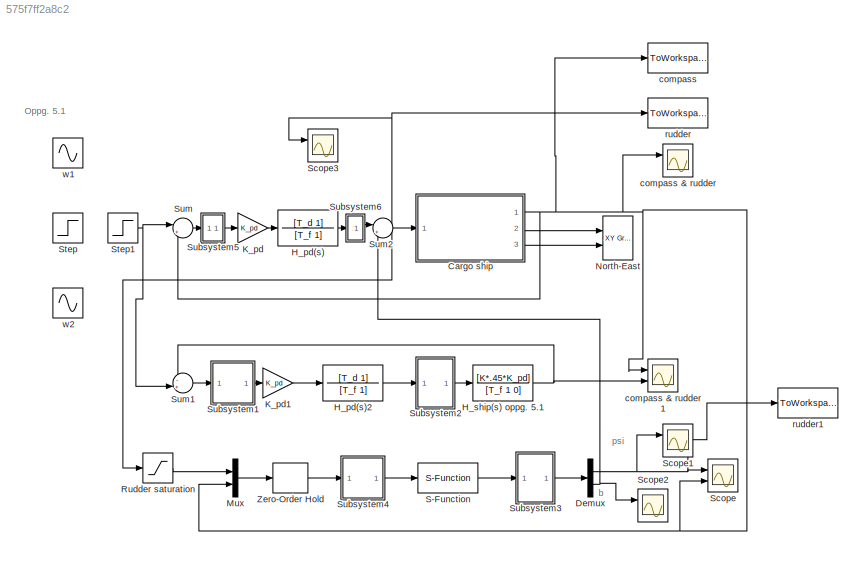
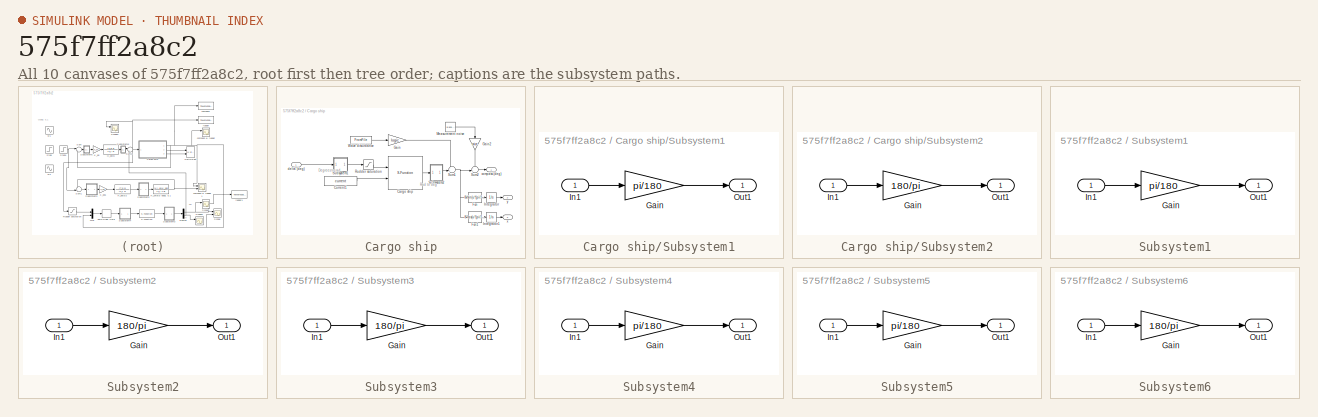
[diagram: thumbnail index - all 10 canvases of the model, root first then tree order]
MODEL slx_575f7ff2a8c2
KIND model
CONFIG AbsTol = auto
CONFIG EnableMultiTasking = on
CONFIG FixedStep = auto
CONFIG MaxStep = auto
CONFIG MinStep = auto
CONFIG RelTol = 1e-3
CONFIG SampleTimeConstraint = Unconstrained
CONFIG Solver = ode45
CONFIG SolverName = ode45
CONFIG StartTime = 0.0
CONFIG StopTime = 800
BLOCK [TransferFcn]  H_pd(s)
  Denominator = [T_f 1]
  Numerator = [T_d 1]
BLOCK [TransferFcn]  H_pd(s)2
  Denominator = [T_f 1]
  Numerator = [T_d 1]
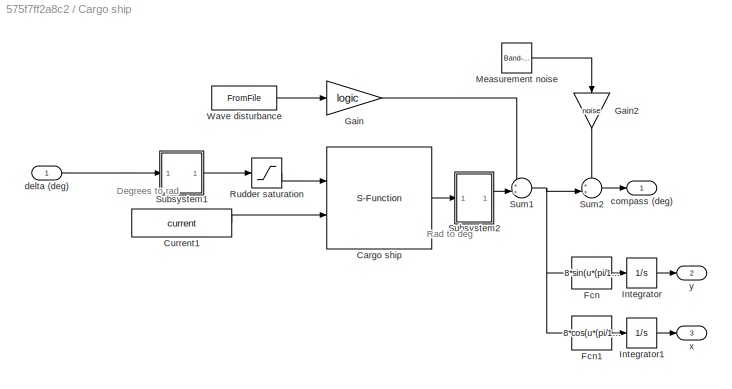
BLOCK [SubSystem] Cargo ship
  Ports = [1, 3]
  RequestExecContextInheritance = off
  Variant = off
BLOCK [S-Function] Cargo ship/Cargo ship
  EnableBusSupport = off
  FunctionName = Cargoship
  Ports = [2, 1]
  SFcnIsStateOwnerBlock = off
  SFunctionDeploymentMode = off
BLOCK [Constant] Cargo ship/Current1
  Value = current
BLOCK [Fcn] Cargo ship/Fcn
  Expr = 8*sin(u*(pi/180))
BLOCK [Fcn] Cargo ship/Fcn1
  Expr = 8*cos(u*(pi/180))
BLOCK [Gain] Cargo ship/Gain
  Gain = logic
BLOCK [Gain] Cargo ship/Gain2
  Gain = noise
BLOCK [Integrator] Cargo ship/Integrator
  Ports = [1, 1]
BLOCK [Integrator] Cargo ship/Integrator1
  Ports = [1, 1]
BLOCK [Reference] Cargo ship/Measurement noise  REF=simulink/Sources/Band-Limited
White Noise
  Ports = [0, 1]
  SourceBlock = simulink/Sources/Band-Limited\nWhite Noise
  SourceType = Band-Limited White Noise.
BLOCK [Saturate] Cargo ship/Rudder saturation
  InputPortMap = u0
  LowerLimit = -45*(pi/180)
  Ports = [1, 1]
  UpperLimit = 45*(pi/180)
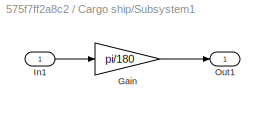
BLOCK [SubSystem] Cargo ship/Subsystem1
  Ports = [1, 1]
  RequestExecContextInheritance = off
  Variant = off
BLOCK [Gain] Cargo ship/Subsystem1/Gain
  Gain = pi/180
BLOCK [Inport] Cargo ship/Subsystem1/In1
  IconDisplay = Port number
BLOCK [Outport] Cargo ship/Subsystem1/Out1
  IconDisplay = Port number
BLOCK [SubSystem] Cargo ship/Subsystem2
  Ports = [1, 1]
  RequestExecContextInheritance = off
  Variant = off
BLOCK [Gain] Cargo ship/Subsystem2/Gain
  Gain = 180/pi
BLOCK [Inport] Cargo ship/Subsystem2/In1
  IconDisplay = Port number
BLOCK [Outport] Cargo ship/Subsystem2/Out1
  IconDisplay = Port number
BLOCK [Sum] Cargo ship/Sum1
  IconShape = round
  InputSameDT = off
  Inputs = ++|
  OutDataTypeStr = Inherit: Inherit via internal rule
  Ports = [2, 1]
BLOCK [Sum] Cargo ship/Sum2
  IconShape = round
  InputSameDT = off
  Inputs = ++|
  OutDataTypeStr = Inherit: Inherit via internal rule
  Ports = [2, 1]
BLOCK [FromFile] Cargo ship/Wave disturbance
  FileName = wave.mat
  SampleTime = 0
BLOCK [Outport] Cargo ship/compass (deg)
  IconDisplay = Port number
BLOCK [Inport] Cargo ship/delta (deg)
  IconDisplay = Port number
BLOCK [Outport] Cargo ship/x
  IconDisplay = Port number
  Port = 3
BLOCK [Outport] Cargo ship/y
  IconDisplay = Port number
  Port = 2
BLOCK [Demux] Demux
  DisplayOption = bar
  Outputs = 2
  Ports = [1, 2]
BLOCK [TransferFcn] H_ship(s) oppg. 5.1
  Denominator = [T_f 1 0]
  Numerator = [K*.45*K_pd]
BLOCK [Gain] K_pd
  Gain = K_pd
  OutDataTypeStr = Inherit: Inherit via internal rule
  ParamDataTypeStr = Inherit: Inherit via internal rule
  SaturateOnIntegerOverflow = off
BLOCK [Gain] K_pd1
  Gain = K_pd
  OutDataTypeStr = Inherit: Inherit via internal rule
  ParamDataTypeStr = Inherit: Inherit via internal rule
  SaturateOnIntegerOverflow = off
BLOCK [Mux] Mux
  DisplayOption = bar
  Inputs = 2
  Ports = [2, 1]
BLOCK [Reference] North-East  REF=simulink/Sinks/XY Graph
  Ports = [2]
  SourceBlock = simulink/Sinks/XY Graph
  SourceType = XY scope.
BLOCK [Saturate] Rudder saturation
  InputPortMap = u0
  LowerLimit = -45*(pi/180)
  Ports = [1, 1]
  UpperLimit = 45*(pi/180)
BLOCK [S-Function] S-Function
  EnableBusSupport = off
  FunctionName = Sfunctionshell
  Parameters = Data
  Ports = [1, 1]
  SFcnIsStateOwnerBlock = off
  SFunctionDeploymentMode = off
BLOCK [Scope] Scope
  NumInputPorts = 2
  Ports = [2]
  ScopeSpecificationString = Simulink.scopes.TimeScopeBlockCfg('CurrentConfiguration', extmgr.ConfigurationSet(extmgr.Configuration('Core','General UI',true),extmgr.Configuration('Core','Source UI',true),extmgr.Configuration('Sources','WiredSimulink',true,'DataLoggingVariableName','ScopeData1'),extmgr.Configuration('Visuals','Time Domain',true,'SerializedDisplays',{struct('MinYLimReal','-9.78651','MaxYLimReal','33.4526','YLab...<+1451ch>
BLOCK [Scope] Scope1
  NumInputPorts = 2
  Ports = [2]
  ScopeSpecificationString = Simulink.scopes.TimeScopeBlockCfg('CurrentConfiguration', extmgr.ConfigurationSet(extmgr.Configuration('Core','General UI',true),extmgr.Configuration('Core','Source UI',true),extmgr.Configuration('Sources','WiredSimulink',true,'DataLoggingVariableName','ScopeData2'),extmgr.Configuration('Visuals','Time Domain',true,'SerializedDisplays',{struct('MinYLimReal','-9.78251','MaxYLimReal','33.45215','YLa...<+1452ch>
BLOCK [Scope] Scope2
  NumInputPorts = 2
  Ports = [2]
  ScopeSpecificationString = Simulink.scopes.TimeScopeBlockCfg('CurrentConfiguration', extmgr.ConfigurationSet(extmgr.Configuration('Core','General UI',true),extmgr.Configuration('Core','Source UI',true),extmgr.Configuration('Sources','WiredSimulink',true,'DataLoggingVariableName','ScopeData3'),extmgr.Configuration('Visuals','Time Domain',true,'SerializedDisplays',{struct('MinYLimReal','-0.000009','MaxYLimReal','0.00001','YLa...<+1452ch>
BLOCK [Scope] Scope3
  NumInputPorts = 2
  Ports = [2]
  ScopeSpecificationString = Simulink.scopes.TimeScopeBlockCfg('CurrentConfiguration', extmgr.ConfigurationSet(extmgr.Configuration('Core','General UI',true),extmgr.Configuration('Core','Source UI',true),extmgr.Configuration('Sources','WiredSimulink',true,'DataLoggingVariableName','ScopeData4'),extmgr.Configuration('Visuals','Time Domain',true,'SerializedDisplays',{struct('MinYLimReal','20.22703','MaxYLimReal','26.39992','YLa...<+1457ch>
BLOCK [Step] Step
  SampleTime = 0
BLOCK [Step] Step1
  After = phi
  SampleTime = 0
  Time = 0
BLOCK [SubSystem] Subsystem1
  Ports = [1, 1]
  RequestExecContextInheritance = off
  Variant = off
BLOCK [Gain] Subsystem1/Gain
  Gain = pi/180
BLOCK [Inport] Subsystem1/In1
  IconDisplay = Port number
BLOCK [Outport] Subsystem1/Out1
  IconDisplay = Port number
BLOCK [SubSystem] Subsystem2
  Ports = [1, 1]
  RequestExecContextInheritance = off
  Variant = off
BLOCK [Gain] Subsystem2/Gain
  Gain = 180/pi
BLOCK [Inport] Subsystem2/In1
  IconDisplay = Port number
BLOCK [Outport] Subsystem2/Out1
  IconDisplay = Port number
BLOCK [SubSystem] Subsystem3
  Ports = [1, 1]
  RequestExecContextInheritance = off
  Variant = off
BLOCK [Gain] Subsystem3/Gain
  Gain = 180/pi
BLOCK [Inport] Subsystem3/In1
  IconDisplay = Port number
BLOCK [Outport] Subsystem3/Out1
  IconDisplay = Port number
BLOCK [SubSystem] Subsystem4
  Ports = [1, 1]
  RequestExecContextInheritance = off
  Variant = off
BLOCK [Gain] Subsystem4/Gain
  Gain = pi/180
BLOCK [Inport] Subsystem4/In1
  IconDisplay = Port number
BLOCK [Outport] Subsystem4/Out1
  IconDisplay = Port number
BLOCK [SubSystem] Subsystem5
  Ports = [1, 1]
  RequestExecContextInheritance = off
  Variant = off
BLOCK [Gain] Subsystem5/Gain
  Gain = pi/180
BLOCK [Inport] Subsystem5/In1
  IconDisplay = Port number
BLOCK [Outport] Subsystem5/Out1
  IconDisplay = Port number
BLOCK [SubSystem] Subsystem6
  Ports = [1, 1]
  RequestExecContextInheritance = off
  Variant = off
BLOCK [Gain] Subsystem6/Gain
  Gain = 180/pi
BLOCK [Inport] Subsystem6/In1
  IconDisplay = Port number
BLOCK [Outport] Subsystem6/Out1
  IconDisplay = Port number
BLOCK [Sum] Sum
  IconShape = round
  InputSameDT = off
  Inputs = |+-
  OutDataTypeStr = Inherit: Inherit via internal rule
  Ports = [2, 1]
  SaturateOnIntegerOverflow = off
BLOCK [Sum] Sum1
  IconShape = round
  InputSameDT = off
  Inputs = -+|
  OutDataTypeStr = Inherit: Inherit via internal rule
  Ports = [2, 1]
  SaturateOnIntegerOverflow = off
BLOCK [Sum] Sum2
  IconShape = round
  InputSameDT = off
  Inputs = |++
  OutDataTypeStr = Inherit: Inherit via internal rule
  Ports = [2, 1]
  SaturateOnIntegerOverflow = off
BLOCK [ZeroOrderHold] Zero-Order Hold
  SampleTime = -1
BLOCK [ToWorkspace] compass
  FixptAsFi = on
  MaxDataPoints = inf
  Ports = [1]
  SampleTime = -1
  Save2DSignal = 3-D array (concatenate along third dimension)
  SaveFormat = Timeseries
  VariableName = compass
BLOCK [Scope] compass & rudder 
  NumInputPorts = 2
  Ports = [2]
  ScopeSpecificationString = Simulink.scopes.TimeScopeBlockCfg('CurrentConfiguration', extmgr.ConfigurationSet(extmgr.Configuration('Core','General UI',true),extmgr.Configuration('Core','Source UI',true),extmgr.Configuration('Sources','WiredSimulink',true,'DataLoggingSaveFormat','StructureWithTime','DataLoggingLimitDataPoints',true,'DataLoggingDecimation','1','DataLoggingDecimateData',true),extmgr.Configuration('Visuals','Tim...<+1704ch>
BLOCK [Scope] compass & rudder 1
  NumInputPorts = 2
  Ports = [2]
  ScopeSpecificationString = Simulink.scopes.TimeScopeBlockCfg('CurrentConfiguration', extmgr.ConfigurationSet(extmgr.Configuration('Core','General UI',true),extmgr.Configuration('Core','Source UI',true),extmgr.Configuration('Sources','WiredSimulink',true,'DataLoggingVariableName','ScopeData1'),extmgr.Configuration('Visuals','Time Domain',true,'SerializedDisplays',{struct('MinYLimReal','-3.74986','MaxYLimReal','33.74874','YLa...<+1423ch>
BLOCK [ToWorkspace] rudder
  FixptAsFi = on
  MaxDataPoints = inf
  Ports = [1]
  SampleTime = -1
  Save2DSignal = 3-D array (concatenate along third dimension)
  SaveFormat = Timeseries
  VariableName = rudder
BLOCK [ToWorkspace] rudder1
  FixptAsFi = on
  MaxDataPoints = inf
  Ports = [1]
  SampleTime = -1
  Save2DSignal = 3-D array (concatenate along third dimension)
  SaveFormat = Timeseries
  VariableName = kalman_estimate_sfunc4
BLOCK [Sin] w1 
  Frequency = 0.005
  Ports = [0, 1]
  SampleTime = 0
BLOCK [Sin] w2
  Frequency = 0.05
  Ports = [0, 1]
  SampleTime = 0
ANNOTATION (root): Oppg. 5.1
ANNOTATION (root): b
ANNOTATION (root): psi
ANNOTATION Cargo ship: Degrees to rad
ANNOTATION Cargo ship: Rad to deg
LINE  H_pd(s)2:1 -> Subsystem2:1
LINE  H_pd(s):1 -> Subsystem6:1
LINE Cargo ship/Cargo ship:1 -> Cargo ship/Subsystem2:1
LINE Cargo ship/Current1:1 -> Cargo ship/Cargo ship:2
LINE Cargo ship/Fcn1:1 -> Cargo ship/Integrator1:1
LINE Cargo ship/Fcn:1 -> Cargo ship/Integrator:1
LINE Cargo ship/Gain2:1 -> Cargo ship/Sum2:1
LINE Cargo ship/Gain:1 -> Cargo ship/Sum1:1
LINE Cargo ship/Integrator1:1 -> Cargo ship/x:1
LINE Cargo ship/Integrator:1 -> Cargo ship/y:1
LINE Cargo ship/Measurement noise:1 -> Cargo ship/Gain2:1
LINE Cargo ship/Rudder saturation:1 -> Cargo ship/Cargo ship:1
LINE Cargo ship/Subsystem1/Gain:1 -> Cargo ship/Subsystem1/Out1:1
LINE Cargo ship/Subsystem1/In1:1 -> Cargo ship/Subsystem1/Gain:1
LINE Cargo ship/Subsystem1:1 -> Cargo ship/Rudder saturation:1
LINE Cargo ship/Subsystem2/Gain:1 -> Cargo ship/Subsystem2/Out1:1
LINE Cargo ship/Subsystem2/In1:1 -> Cargo ship/Subsystem2/Gain:1
LINE Cargo ship/Subsystem2:1 -> Cargo ship/Sum1:2
NET Cargo ship/Sum1:1 -> Cargo ship/Fcn1:1, Cargo ship/Fcn:1, Cargo ship/Sum2:2
LINE Cargo ship/Sum2:1 -> Cargo ship/compass (deg):1
LINE Cargo ship/Wave disturbance:1 -> Cargo ship/Gain:1
LINE Cargo ship/delta (deg):1 -> Cargo ship/Subsystem1:1
NET Cargo ship:1 -> Mux:2, Scope:2, Sum:2, compass & rudder 1:1, compass & rudder :1, compass:1
LINE Cargo ship:2 -> North-East:1
LINE Cargo ship:3 -> North-East:2
NET Demux:1 -> Scope1:1, Scope:1, rudder1:1
NET Demux:2 -> Scope2:1, Sum2:2
NET H_ship(s) oppg. 5.1:1 -> Sum1:1, compass & rudder 1:2
LINE K_pd1:1 ->  H_pd(s)2:1
LINE K_pd:1 ->  H_pd(s):1
LINE Mux:1 -> Zero-Order Hold:1
LINE Rudder saturation:1 -> Mux:1
LINE S-Function:1 -> Subsystem3:1
NET Step1:1 -> Sum1:2, Sum:1
LINE Subsystem1/Gain:1 -> Subsystem1/Out1:1
LINE Subsystem1/In1:1 -> Subsystem1/Gain:1
LINE Subsystem1:1 -> K_pd1:1
LINE Subsystem2/Gain:1 -> Subsystem2/Out1:1
LINE Subsystem2/In1:1 -> Subsystem2/Gain:1
LINE Subsystem2:1 -> H_ship(s) oppg. 5.1:1
LINE Subsystem3/Gain:1 -> Subsystem3/Out1:1
LINE Subsystem3/In1:1 -> Subsystem3/Gain:1
LINE Subsystem3:1 -> Demux:1
LINE Subsystem4/Gain:1 -> Subsystem4/Out1:1
LINE Subsystem4/In1:1 -> Subsystem4/Gain:1
LINE Subsystem4:1 -> S-Function:1
LINE Subsystem5/Gain:1 -> Subsystem5/Out1:1
LINE Subsystem5/In1:1 -> Subsystem5/Gain:1
LINE Subsystem5:1 -> K_pd:1
LINE Subsystem6/Gain:1 -> Subsystem6/Out1:1
LINE Subsystem6/In1:1 -> Subsystem6/Gain:1
LINE Subsystem6:1 -> Sum2:1
LINE Sum1:1 -> Subsystem1:1
NET Sum2:1 -> Cargo ship:1, Rudder saturation:1, Scope3:1, rudder:1
LINE Sum:1 -> Subsystem5:1
LINE Zero-Order Hold:1 -> Subsystem4:1
note: NET lines group one-source signal fan-out (src -> all destinations, sorted); 1:1 wires keep LINE
